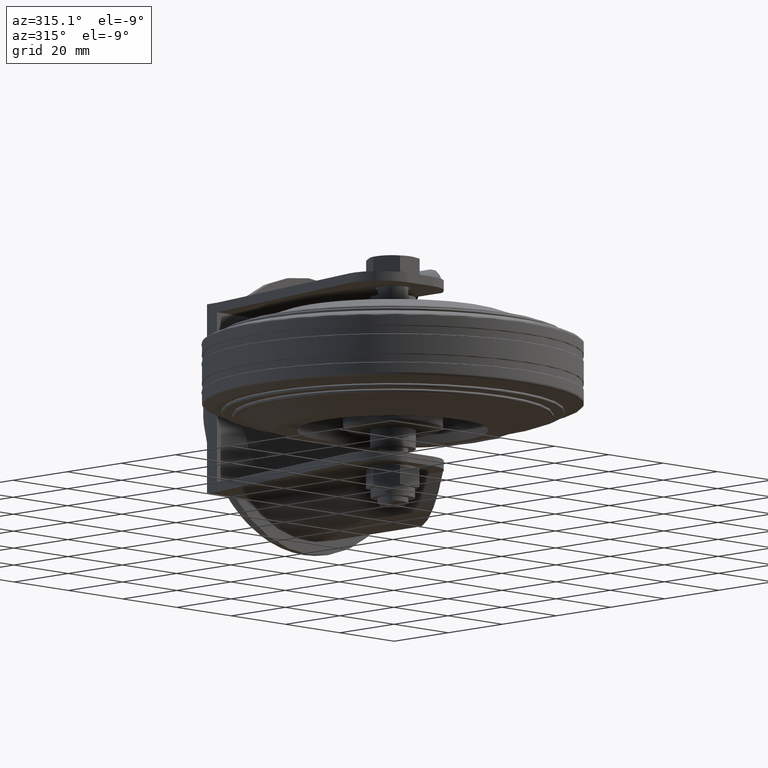
[diagram: clean part render]
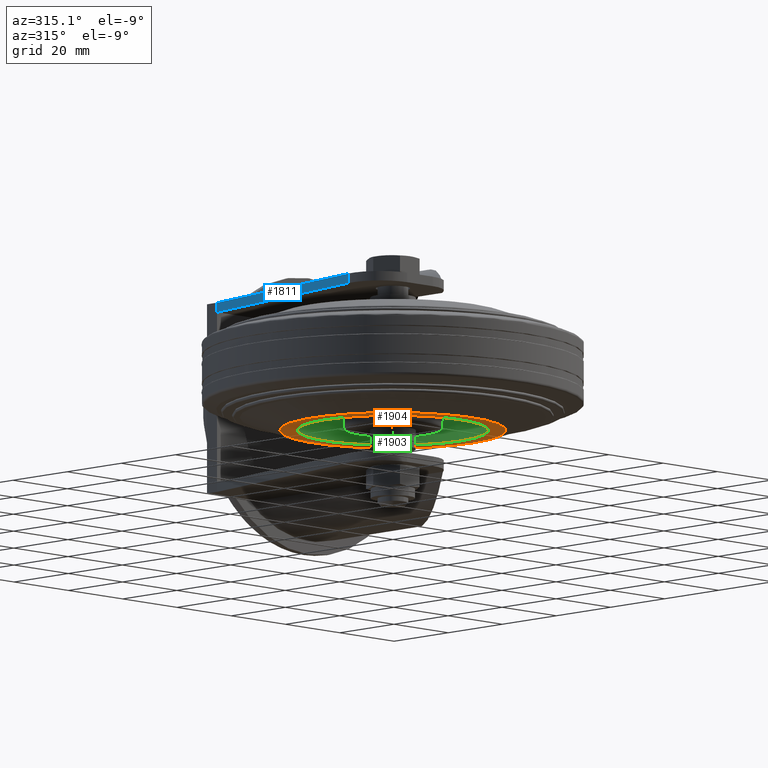
[diagram: same view with three faces highlighted in distinct colors, each labeled with its STEP entity id]
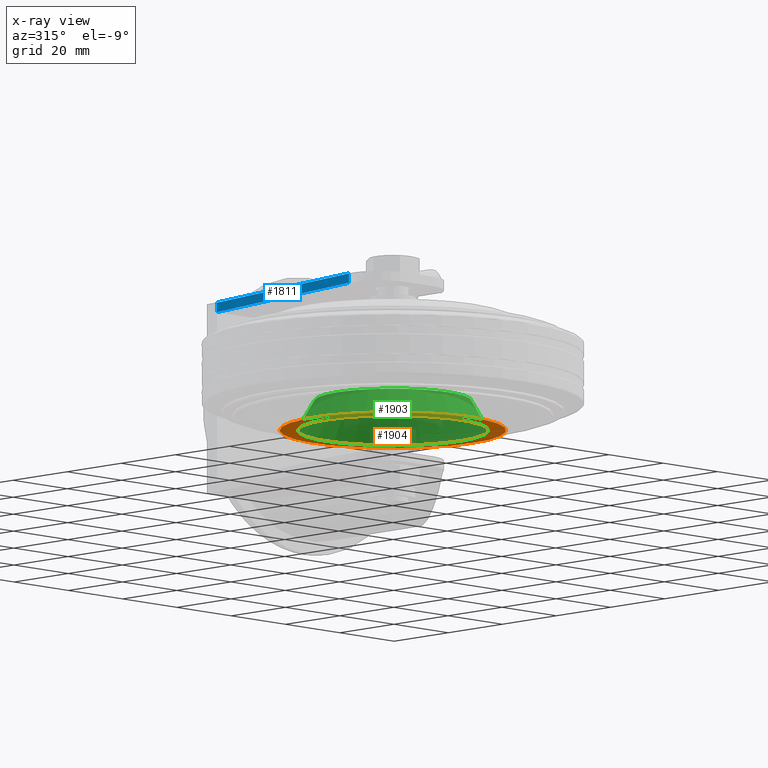
[diagram: x-ray of the same camera — body ghosted, the three highlighted faces saturated]
A machine part, auxiliary view with three faces highlighted in distinct colors.
The next image is the same camera in x-ray (body ghosted, the three faces saturated) — at least one of them is partly hidden behind the body in this view.
Their STEP definitions:

[orange] entity #1904 — the highlighted planar face has unit normal (0, 0, -1).
#202=FACE_BOUND('',#511,.T.);
#252=PLANE('',#2245);
#360=FACE_OUTER_BOUND('',#510,.T.);
#510=EDGE_LOOP('',(#1677));
#511=EDGE_LOOP('',(#1678));
#636=CIRCLE('',#2244,25.);
#637=CIRCLE('',#2246,29.5816434772964);
#962=VERTEX_POINT('',#3481);
#963=VERTEX_POINT('',#3485);
#1204=EDGE_CURVE('',#962,#962,#636,.T.);
#1205=EDGE_CURVE('',#963,#963,#637,.T.);
#1677=ORIENTED_EDGE('',*,*,#1205,.T.);
#1678=ORIENTED_EDGE('',*,*,#1204,.F.);
#1904=ADVANCED_FACE('',(#360,#202),#252,.T.);
#2244=AXIS2_PLACEMENT_3D('',#3483,#2789,#2790);
#2245=AXIS2_PLACEMENT_3D('',#3484,#2791,#2792);
#2246=AXIS2_PLACEMENT_3D('',#3486,#2793,#2794);
#2789=DIRECTION('center_axis',(6.12323399573677E-17,0.,-1.));
#2790=DIRECTION('ref_axis',(-1.,0.,-6.12323399573677E-17));
#2791=DIRECTION('center_axis',(6.12323399573677E-17,0.,-1.));
#2792=DIRECTION('ref_axis',(-1.,0.,-6.12323399573677E-17));
#2793=DIRECTION('center_axis',(6.12323399573677E-17,0.,-1.));
#2794=DIRECTION('ref_axis',(-1.,0.,-6.12323399573677E-17));
#3481=CARTESIAN_POINT('',(25.,-3.06161699786838E-15,-15.));
#3483=CARTESIAN_POINT('Origin',(9.18485099360515E-16,0.,-15.));
#3484=CARTESIAN_POINT('Origin',(-25.,0.,-15.));
#3485=CARTESIAN_POINT('',(29.5816434772964,-3.62270649979892E-15,-15.));
#3486=CARTESIAN_POINT('Origin',(9.18485099360515E-16,0.,-15.));

[blue] entity #1811 — the highlighted planar face has unit normal (-0.9857, 0.1685, 0).
#211=PLANE('',#2066);
#267=FACE_OUTER_BOUND('',#395,.T.);
#395=EDGE_LOOP('',(#1298,#1299,#1300,#1301));
#698=LINE('',#3001,#773);
#700=LINE('',#3011,#775);
#701=LINE('',#3012,#776);
#702=LINE('',#3013,#777);
#773=VECTOR('',#2378,1000.);
#775=VECTOR('',#2388,1000.);
#776=VECTOR('',#2389,1000.);
#777=VECTOR('',#2390,1000.);
#853=VERTEX_POINT('',#2997);
#854=VERTEX_POINT('',#2999);
#857=VERTEX_POINT('',#3009);
#858=VERTEX_POINT('',#3010);
#1022=EDGE_CURVE('',#854,#853,#698,.T.);
#1026=EDGE_CURVE('',#857,#858,#700,.T.);
#1027=EDGE_CURVE('',#858,#853,#701,.T.);
#1028=EDGE_CURVE('',#857,#854,#702,.T.);
#1298=ORIENTED_EDGE('',*,*,#1026,.T.);
#1299=ORIENTED_EDGE('',*,*,#1027,.T.);
#1300=ORIENTED_EDGE('',*,*,#1022,.F.);
#1301=ORIENTED_EDGE('',*,*,#1028,.F.);
#1811=ADVANCED_FACE('',(#267),#211,.T.);
#2066=AXIS2_PLACEMENT_3D('',#3008,#2386,#2387);
#2378=DIRECTION('',(0.,0.,-1.));
#2386=DIRECTION('center_axis',(-0.985693490368958,0.1685477470756,0.));
#2387=DIRECTION('ref_axis',(-0.1685477470756,-0.985693490368958,0.));
#2388=DIRECTION('',(0.,0.,-1.));
#2389=DIRECTION('',(-0.1685477470756,-0.985693490368958,0.));
#2390=DIRECTION('',(-0.1685477470756,-0.985693490368958,0.));
#2997=CARTESIAN_POINT('',(-14.5569349036896,1.685477470756,22.5));
#2999=CARTESIAN_POINT('',(-14.5569349036896,1.685477470756,25.));
#3001=CARTESIAN_POINT('',(-14.5569349036896,1.685477470756,100.));
#3008=CARTESIAN_POINT('Origin',(-14.5569349036896,1.685477470756,100.));
#3009=CARTESIAN_POINT('',(-4.5,60.5,25.));
#3010=CARTESIAN_POINT('',(-4.5,60.5,22.5));
#3011=CARTESIAN_POINT('',(-4.5,60.5,100.));
#3012=CARTESIAN_POINT('',(-14.5569349036896,1.685477470756,22.5));
#3013=CARTESIAN_POINT('',(-14.4234156913816,2.46631863116723,25.));

[green] entity #1903 — the highlighted conical surface has half-angle 30 deg.
#99=CONICAL_SURFACE('',#2243,20.5255354137804,0.523598775598299);
#359=FACE_OUTER_BOUND('',#509,.T.);
#509=EDGE_LOOP('',(#1673,#1674,#1675,#1676));
#635=CIRCLE('',#2242,20.5255354137804);
#636=CIRCLE('',#2244,25.);
#746=LINE('',#3482,#821);
#821=VECTOR('',#2788,20.5255354137804);
#961=VERTEX_POINT('',#3477);
#962=VERTEX_POINT('',#3481);
#1202=EDGE_CURVE('',#961,#961,#635,.T.);
#1203=EDGE_CURVE('',#961,#962,#746,.T.);
#1204=EDGE_CURVE('',#962,#962,#636,.T.);
#1673=ORIENTED_EDGE('',*,*,#1202,.F.);
#1674=ORIENTED_EDGE('',*,*,#1203,.T.);
#1675=ORIENTED_EDGE('',*,*,#1204,.T.);
#1676=ORIENTED_EDGE('',*,*,#1203,.F.);
#1903=ADVANCED_FACE('',(#359),#99,.F.);
#2242=AXIS2_PLACEMENT_3D('',#3479,#2784,#2785);
#2243=AXIS2_PLACEMENT_3D('',#3480,#2786,#2787);
#2244=AXIS2_PLACEMENT_3D('',#3483,#2789,#2790);
#2784=DIRECTION('center_axis',(6.12323399573677E-17,0.,-1.));
#2785=DIRECTION('ref_axis',(-1.,0.,-6.12323399573677E-17));
#2786=DIRECTION('center_axis',(6.12323399573677E-17,0.,-1.));
#2787=DIRECTION('ref_axis',(-1.,0.,-6.12323399573677E-17));
#2788=DIRECTION('',(0.5,-6.12323399573677E-17,-0.866025403784439));
#2789=DIRECTION('center_axis',(6.12323399573677E-17,0.,-1.));
#2790=DIRECTION('ref_axis',(-1.,0.,-6.12323399573677E-17));
#3477=CARTESIAN_POINT('',(20.5255354137804,-2.51365312452718E-15,-7.25));
#3479=CARTESIAN_POINT('Origin',(4.43934464690916E-16,0.,-7.25));
#3480=CARTESIAN_POINT('Origin',(4.43934464690916E-16,0.,-7.25));
#3481=CARTESIAN_POINT('',(25.,-3.06161699786838E-15,-15.));
#3482=CARTESIAN_POINT('',(20.5255354137804,-2.51365312452718E-15,-7.25));
#3483=CARTESIAN_POINT('Origin',(9.18485099360515E-16,0.,-15.));